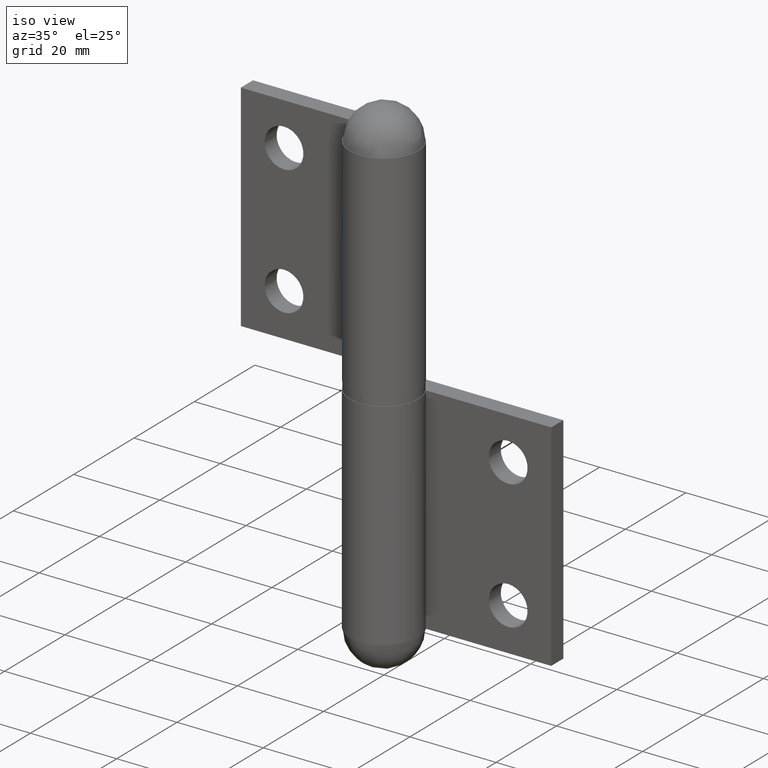
[diagram: clean part render]
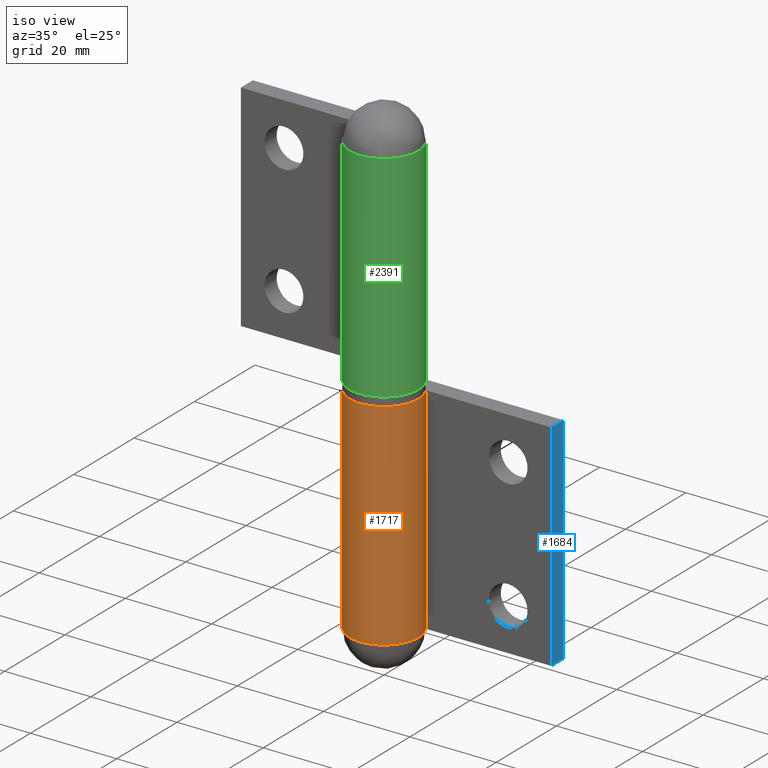
[diagram: same view with three faces highlighted in distinct colors, each labeled with its STEP entity id]
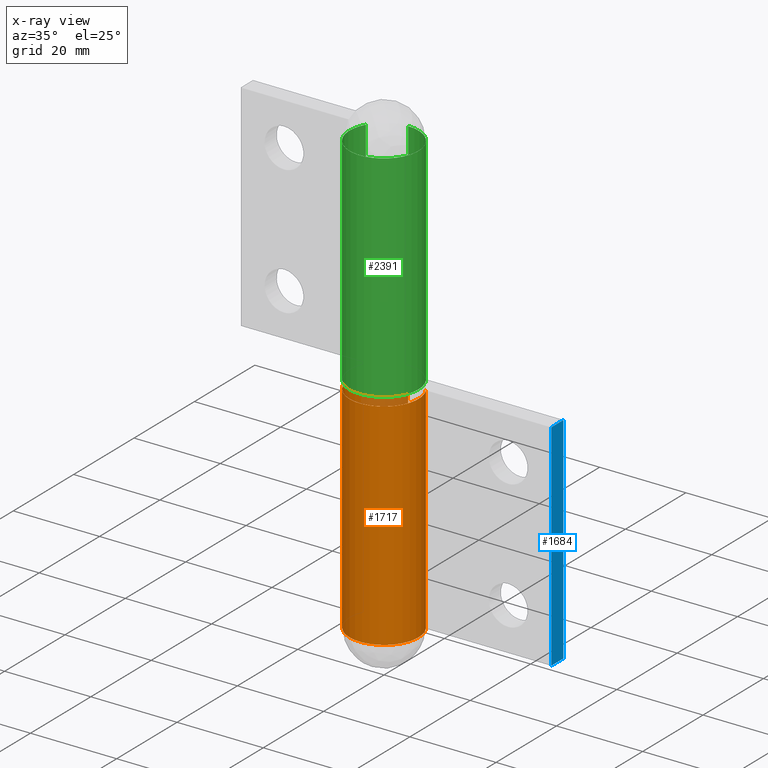
[diagram: x-ray of the same camera — body ghosted, the three highlighted faces saturated]
A machine part, iso view with three faces highlighted in distinct colors.
The next image is the same camera in x-ray (body ghosted, the three faces saturated) — at least one of them is partly hidden behind the body in this view.
Their STEP definitions:

[orange] entity #1717 — the highlighted face is a freeform B-spline surface patch.
#1457=CARTESIAN_POINT('',(6.956831175183141,3.950000000000000,50.0));
#1458=VERTEX_POINT('',#1457);
#1459=CARTESIAN_POINT('',(0.0,8.0,50.0));
#1460=VERTEX_POINT('',#1459);
#1461=CARTESIAN_POINT('',(6.956831175183138,3.950000000000002,50.0));
#1462=CARTESIAN_POINT('',(9.982126981727548,-1.378220805346568,50.0));
#1463=CARTESIAN_POINT('',(5.626216515532542,-5.687326939815300,50.0));
#1464=CARTESIAN_POINT('',(1.270306049337542,-9.996433074284029,50.0));
#1465=CARTESIAN_POINT('',(-4.024922359499616,-6.913754406977446,50.0));
#1466=CARTESIAN_POINT('',(-9.320150768336777,-3.831075739670861,50.0));
#1467=CARTESIAN_POINT('',(-7.723666074339943,2.084462130164569,50.0));
#1468=CARTESIAN_POINT('',(-6.127181380343109,8.0,50.0));
#1469=CARTESIAN_POINT('',(0.0,8.0,50.0));
#1477=(BOUNDED_CURVE()B_SPLINE_CURVE(2,(#1461,#1462,#1463,#1464,#1465,#1466,#1467,#1468,#1469),.UNSPECIFIED.,.F.,.U.)B_SPLINE_CURVE_WITH_KNOTS((3,2,2,2,3),(0.0,0.250000000000000,0.500000000000000,0.750000000000000,1.0),.UNSPECIFIED.)CURVE()GEOMETRIC_REPRESENTATION_ITEM()RATIONAL_B_SPLINE_CURVE((1.0,0.793901053743655,1.0,0.793901053743655,1.0,0.793901053743655,1.0,0.793901053743655,1.0))REPRESENTATION_ITEM(''));
#1478=EDGE_CURVE('',#1458,#1460,#1477,.T.);
#1535=CARTESIAN_POINT('',(6.956831175183141,3.950000000000000,0.0));
#1536=VERTEX_POINT('',#1535);
#1537=CARTESIAN_POINT('',(0.0,8.0,0.0));
#1538=VERTEX_POINT('',#1537);
#1539=CARTESIAN_POINT('',(6.956831175183138,3.950000000000002,0.0));
#1540=CARTESIAN_POINT('',(9.982126981727548,-1.378220805346568,0.0));
#1541=CARTESIAN_POINT('',(5.626216515532542,-5.687326939815300,0.0));
#1542=CARTESIAN_POINT('',(1.270306049337542,-9.996433074284029,0.0));
#1543=CARTESIAN_POINT('',(-4.024922359499616,-6.913754406977446,0.0));
#1544=CARTESIAN_POINT('',(-9.320150768336777,-3.831075739670861,0.0));
#1545=CARTESIAN_POINT('',(-7.723666074339943,2.084462130164569,0.0));
#1546=CARTESIAN_POINT('',(-6.127181380343109,8.0,0.0));
#1547=CARTESIAN_POINT('',(0.0,8.0,0.0));
#1555=(BOUNDED_CURVE()B_SPLINE_CURVE(2,(#1539,#1540,#1541,#1542,#1543,#1544,#1545,#1546,#1547),.UNSPECIFIED.,.F.,.U.)B_SPLINE_CURVE_WITH_KNOTS((3,2,2,2,3),(0.0,0.250000000000000,0.500000000000000,0.750000000000000,1.0),.UNSPECIFIED.)CURVE()GEOMETRIC_REPRESENTATION_ITEM()RATIONAL_B_SPLINE_CURVE((1.0,0.793901053743655,1.0,0.793901053743655,1.0,0.793901053743655,1.0,0.793901053743655,1.0))REPRESENTATION_ITEM(''));
#1556=EDGE_CURVE('',#1536,#1538,#1555,.T.);
#1614=CARTESIAN_POINT('',(6.956831175183141,3.950000000000000,0.0));
#1615=CARTESIAN_POINT('',(6.956831175183141,3.950000000000000,50.0));
#1616=QUASI_UNIFORM_CURVE('',1,(#1614,#1615),.UNSPECIFIED.,.F.,.U.);
#1617=EDGE_CURVE('',#1536,#1458,#1616,.T.);
#1685=CARTESIAN_POINT('',(6.821121314832735,4.179988517727590,-1.250000000000001));
#1686=CARTESIAN_POINT('',(6.821121314832735,4.179988517727590,51.281250000000007));
#1687=CARTESIAN_POINT('',(11.982977249723699,-4.243394798339984,-1.250000000000002));
#1688=CARTESIAN_POINT('',(11.982977249723699,-4.243394798339984,51.281250000000007));
#1689=CARTESIAN_POINT('',(2.670454873870168,-7.541131928737424,-1.250000000000001));
#1690=CARTESIAN_POINT('',(2.670454873870168,-7.541131928737424,51.281250000000007));
#1691=CARTESIAN_POINT('',(-6.642067501983363,-10.838869059134865,-1.250000000000002));
#1692=CARTESIAN_POINT('',(-6.642067501983363,-10.838869059134865,51.281250000000007));
#1693=CARTESIAN_POINT('',(-7.931558890990480,-1.044209537760415,-1.250000000000001));
#1694=CARTESIAN_POINT('',(-7.931558890990480,-1.044209537760415,51.281250000000007));
#1695=CARTESIAN_POINT('',(-9.221050279997597,8.750449983614031,-1.250000000000002));
#1696=CARTESIAN_POINT('',(-9.221050279997597,8.750449983614031,51.281250000000007));
#1697=CARTESIAN_POINT('',(0.627672765822754,7.975338669865019,-1.250000000000001));
#1698=CARTESIAN_POINT('',(0.627672765822754,7.975338669865019,51.281250000000007));
#1706=(BOUNDED_SURFACE()B_SPLINE_SURFACE(1,2,((#1685,#1687,#1689,#1691,#1693,#1695,#1697),(#1686,#1688,#1690,#1692,#1694,#1696,#1698)),.UNSPECIFIED.,.F.,.F.,.U.)B_SPLINE_SURFACE_WITH_KNOTS((2,2),(3,2,2,3),(0.0,52.531250000000007),(0.0,15.263217046341120,30.526434092682241,45.789651139023363),.UNSPECIFIED.)GEOMETRIC_REPRESENTATION_ITEM()RATIONAL_B_SPLINE_SURFACE(((1.0,0.629320391049838,1.0,0.629320391049838,1.0,0.629320391049838,1.0),(1.0,0.629320391049838,1.0,0.629320391049838,1.0,0.629320391049838,1.0)))REPRESENTATION_ITEM('')SURFACE());
#1707=ORIENTED_EDGE('',*,*,#1478,.T.);
#1708=CARTESIAN_POINT('',(0.0,8.0,0.0));
#1709=CARTESIAN_POINT('',(0.0,8.0,50.0));
#1710=QUASI_UNIFORM_CURVE('',1,(#1708,#1709),.UNSPECIFIED.,.F.,.U.);
#1711=EDGE_CURVE('',#1538,#1460,#1710,.T.);
#1712=ORIENTED_EDGE('',*,*,#1711,.F.);
#1713=ORIENTED_EDGE('',*,*,#1556,.F.);
#1714=ORIENTED_EDGE('',*,*,#1617,.T.);
#1715=EDGE_LOOP('',(#1707,#1712,#1713,#1714));
#1716=FACE_OUTER_BOUND('',#1715,.T.);
#1717=ADVANCED_FACE('',(#1716),#1706,.T.);

[blue] entity #1684 — the highlighted face is a freeform B-spline surface patch.
#1508=CARTESIAN_POINT('',(36.0,4.0,50.0));
#1509=VERTEX_POINT('',#1508);
#1515=CARTESIAN_POINT('',(36.0,8.0,50.0));
#1516=VERTEX_POINT('',#1515);
#1517=CARTESIAN_POINT('',(36.0,8.0,50.0));
#1518=CARTESIAN_POINT('',(36.0,4.0,50.0));
#1519=QUASI_UNIFORM_CURVE('',1,(#1517,#1518),.UNSPECIFIED.,.F.,.U.);
#1520=EDGE_CURVE('',#1516,#1509,#1519,.T.);
#1558=CARTESIAN_POINT('',(36.0,8.0,0.0));
#1559=VERTEX_POINT('',#1558);
#1565=CARTESIAN_POINT('',(36.0,4.0,0.0));
#1566=VERTEX_POINT('',#1565);
#1567=CARTESIAN_POINT('',(36.0,8.0,0.0));
#1568=CARTESIAN_POINT('',(36.0,4.0,0.0));
#1569=QUASI_UNIFORM_CURVE('',1,(#1567,#1568),.UNSPECIFIED.,.F.,.U.);
#1570=EDGE_CURVE('',#1559,#1566,#1569,.T.);
#1665=CARTESIAN_POINT('',(36.0,3.800200007752776,-2.497499903090299));
#1666=CARTESIAN_POINT('',(36.0,3.800200007752776,52.497501244194808));
#1667=CARTESIAN_POINT('',(36.0,8.199800099535585,-2.497499903090299));
#1668=CARTESIAN_POINT('',(36.0,8.199800099535585,52.497501244194808));
#1669=B_SPLINE_SURFACE_WITH_KNOTS('',1,1,((#1665,#1667),(#1666,#1668)),.UNSPECIFIED.,.F.,.F.,.U.,(2,2),(2,2),(0.0,54.995001147285109),(0.0,4.399600091782808),.UNSPECIFIED.);
#1670=ORIENTED_EDGE('',*,*,#1520,.T.);
#1671=CARTESIAN_POINT('',(36.0,4.0,0.0));
#1672=CARTESIAN_POINT('',(36.0,4.0,50.0));
#1673=QUASI_UNIFORM_CURVE('',1,(#1671,#1672),.UNSPECIFIED.,.F.,.U.);
#1674=EDGE_CURVE('',#1566,#1509,#1673,.T.);
#1675=ORIENTED_EDGE('',*,*,#1674,.F.);
#1676=ORIENTED_EDGE('',*,*,#1570,.F.);
#1677=CARTESIAN_POINT('',(36.0,8.0,0.0));
#1678=CARTESIAN_POINT('',(36.0,8.0,50.0));
#1679=QUASI_UNIFORM_CURVE('',1,(#1677,#1678),.UNSPECIFIED.,.F.,.U.);
#1680=EDGE_CURVE('',#1559,#1516,#1679,.T.);
#1681=ORIENTED_EDGE('',*,*,#1680,.T.);
#1682=EDGE_LOOP('',(#1670,#1675,#1676,#1681));
#1683=FACE_OUTER_BOUND('',#1682,.T.);
#1684=ADVANCED_FACE('',(#1683),#1669,.F.);

[green] entity #2391 — the highlighted face is a freeform B-spline surface patch.
#2207=CARTESIAN_POINT('',(-6.956831175183141,3.950000000000000,102.0));
#2208=VERTEX_POINT('',#2207);
#2214=CARTESIAN_POINT('',(0.0,8.0,102.0));
#2215=VERTEX_POINT('',#2214);
#2216=CARTESIAN_POINT('',(0.0,8.0,102.0));
#2217=CARTESIAN_POINT('',(6.127181380343105,8.0,102.0));
#2218=CARTESIAN_POINT('',(7.723666074339942,2.084462130164574,102.0));
#2219=CARTESIAN_POINT('',(9.320150768336779,-3.831075739670848,102.0));
#2220=CARTESIAN_POINT('',(4.024922359499626,-6.913754406977439,102.0));
#2221=CARTESIAN_POINT('',(-1.270306049337526,-9.996433074284029,102.0));
#2222=CARTESIAN_POINT('',(-5.626216515532533,-5.687326939815309,102.0));
#2223=CARTESIAN_POINT('',(-9.982126981727545,-1.378220805346582,102.0));
#2224=CARTESIAN_POINT('',(-6.956831175183142,3.949999999999993,102.0));
#2232=(BOUNDED_CURVE()B_SPLINE_CURVE(2,(#2216,#2217,#2218,#2219,#2220,#2221,#2222,#2223,#2224),.UNSPECIFIED.,.F.,.U.)B_SPLINE_CURVE_WITH_KNOTS((3,2,2,2,3),(0.0,0.250000000000000,0.500000000000000,0.750000000000000,1.0),.UNSPECIFIED.)CURVE()GEOMETRIC_REPRESENTATION_ITEM()RATIONAL_B_SPLINE_CURVE((1.0,0.793901053743655,1.0,0.793901053743655,1.0,0.793901053743655,1.0,0.793901053743655,1.0))REPRESENTATION_ITEM(''));
#2233=EDGE_CURVE('',#2215,#2208,#2232,.T.);
#2299=CARTESIAN_POINT('',(0.0,8.0,52.0));
#2300=VERTEX_POINT('',#2299);
#2306=CARTESIAN_POINT('',(-6.956831175183141,3.950000000000000,52.0));
#2307=VERTEX_POINT('',#2306);
#2308=CARTESIAN_POINT('',(0.0,8.0,52.0));
#2309=CARTESIAN_POINT('',(6.127181380343105,8.0,52.000000000000014));
#2310=CARTESIAN_POINT('',(7.723666074339942,2.084462130164574,52.0));
#2311=CARTESIAN_POINT('',(9.320150768336779,-3.831075739670848,52.000000000000014));
#2312=CARTESIAN_POINT('',(4.024922359499626,-6.913754406977439,52.0));
#2313=CARTESIAN_POINT('',(-1.270306049337526,-9.996433074284029,52.000000000000014));
#2314=CARTESIAN_POINT('',(-5.626216515532533,-5.687326939815309,52.0));
#2315=CARTESIAN_POINT('',(-9.982126981727545,-1.378220805346582,52.000000000000014));
#2316=CARTESIAN_POINT('',(-6.956831175183142,3.949999999999993,52.0));
#2324=(BOUNDED_CURVE()B_SPLINE_CURVE(2,(#2308,#2309,#2310,#2311,#2312,#2313,#2314,#2315,#2316),.UNSPECIFIED.,.F.,.U.)B_SPLINE_CURVE_WITH_KNOTS((3,2,2,2,3),(0.0,0.250000000000000,0.500000000000000,0.750000000000000,1.0),.UNSPECIFIED.)CURVE()GEOMETRIC_REPRESENTATION_ITEM()RATIONAL_B_SPLINE_CURVE((1.0,0.793901053743655,1.0,0.793901053743655,1.0,0.793901053743655,1.0,0.793901053743655,1.0))REPRESENTATION_ITEM(''));
#2325=EDGE_CURVE('',#2300,#2307,#2324,.T.);
#2355=CARTESIAN_POINT('',(-0.069812283986984,7.999695384513368,50.749999999999993));
#2356=CARTESIAN_POINT('',(-0.069812283986984,7.999695384513368,103.281250000000000));
#2357=CARTESIAN_POINT('',(9.634594220622239,8.084384457066863,50.749999999999993));
#2358=CARTESIAN_POINT('',(9.634594220622239,8.084384457066863,103.281250000000010));
#2359=CARTESIAN_POINT('',(7.866039260511634,-1.457884203937182,50.749999999999993));
#2360=CARTESIAN_POINT('',(7.866039260511634,-1.457884203937182,103.281250000000000));
#2361=CARTESIAN_POINT('',(6.097484300401030,-11.000152864941228,50.749999999999993));
#2362=CARTESIAN_POINT('',(6.097484300401030,-11.000152864941228,103.281250000000010));
#2363=CARTESIAN_POINT('',(-2.932009813794376,-7.443340543856195,50.749999999999993));
#2364=CARTESIAN_POINT('',(-2.932009813794376,-7.443340543856195,103.281250000000000));
#2365=CARTESIAN_POINT('',(-11.961503927989781,-3.886528222771161,50.749999999999993));
#2366=CARTESIAN_POINT('',(-11.961503927989781,-3.886528222771161,103.281250000000010));
#2367=CARTESIAN_POINT('',(-6.747131566503088,4.298396866774585,50.749999999999993));
#2368=CARTESIAN_POINT('',(-6.747131566503088,4.298396866774585,103.281250000000000));
#2376=(BOUNDED_SURFACE()B_SPLINE_SURFACE(1,2,((#2355,#2357,#2359,#2361,#2363,#2365,#2367),(#2356,#2358,#2360,#2362,#2364,#2366,#2368)),.UNSPECIFIED.,.F.,.F.,.U.)B_SPLINE_SURFACE_WITH_KNOTS((2,2),(3,2,2,3),(0.0,52.531250000000021),(0.0,15.092179800679070,30.184359601358139,45.276539402037201),.UNSPECIFIED.)GEOMETRIC_REPRESENTATION_ITEM()RATIONAL_B_SPLINE_SURFACE(((1.0,0.636078220277764,1.0,0.636078220277764,1.0,0.636078220277764,1.0),(1.0,0.636078220277764,1.0,0.636078220277764,1.0,0.636078220277764,1.0)))REPRESENTATION_ITEM('')SURFACE());
#2377=ORIENTED_EDGE('',*,*,#2233,.T.);
#2378=CARTESIAN_POINT('',(-6.956831175183141,3.950000000000000,52.0));
#2379=CARTESIAN_POINT('',(-6.956831175183141,3.950000000000000,102.0));
#2380=QUASI_UNIFORM_CURVE('',1,(#2378,#2379),.UNSPECIFIED.,.F.,.U.);
#2381=EDGE_CURVE('',#2307,#2208,#2380,.T.);
#2382=ORIENTED_EDGE('',*,*,#2381,.F.);
#2383=ORIENTED_EDGE('',*,*,#2325,.F.);
#2384=CARTESIAN_POINT('',(0.0,8.0,52.0));
#2385=CARTESIAN_POINT('',(0.0,8.0,102.0));
#2386=QUASI_UNIFORM_CURVE('',1,(#2384,#2385),.UNSPECIFIED.,.F.,.U.);
#2387=EDGE_CURVE('',#2300,#2215,#2386,.T.);
#2388=ORIENTED_EDGE('',*,*,#2387,.T.);
#2389=EDGE_LOOP('',(#2377,#2382,#2383,#2388));
#2390=FACE_OUTER_BOUND('',#2389,.T.);
#2391=ADVANCED_FACE('',(#2390),#2376,.T.);